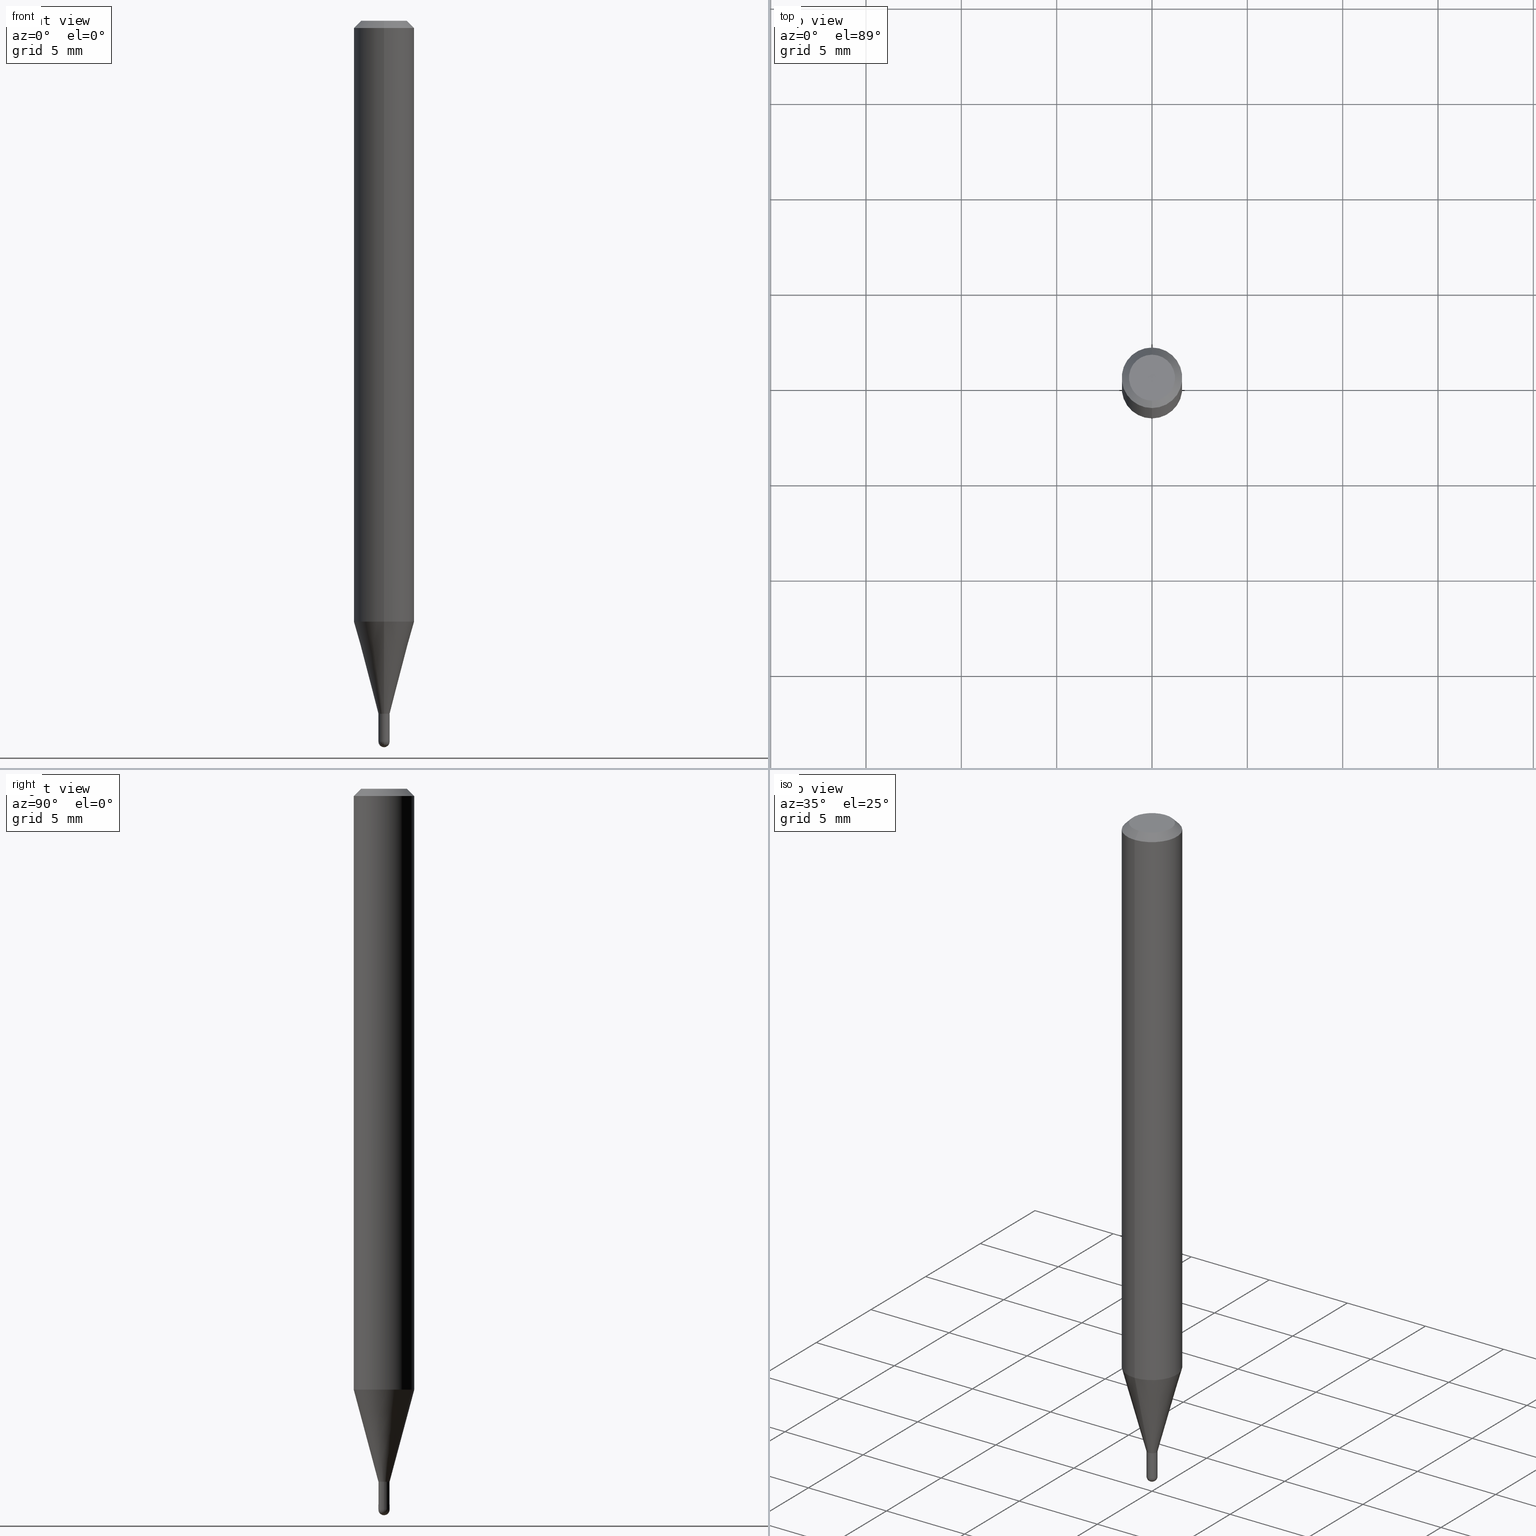
[diagram: canonical four-view strip — front | top / right | iso, engineering-drawing reading convention]
A machine part, canonical four-view strip (front | top / right | iso — engineering-drawing reading convention). The complete STEP part file that produces these views, byte-faithful:
ISO-10303-21;
HEADER;
FILE_DESCRIPTION (( 'STEP AP203' ),
    '1' );
FILE_NAME ('04401.STEP',
    '2024-03-08T19:11:41',
    ( '' ),
    ( '' ),
    'SwSTEP 2.0',
    'SolidWorks 2023',
    '' );
FILE_SCHEMA (( 'CONFIG_CONTROL_DESIGN' ));
ENDSEC;

DATA;
#1 = CIRCLE ( 'NONE', #252, 0.06250000000000000000 ) ;
#2 = CARTESIAN_POINT ( 'NONE',  ( 8.171241461241097765E-17, 0.01149999999999992521, -4.015211543508976530E-17 ) ) ;
#3 = CARTESIAN_POINT ( 'NONE',  ( -0.01149999999999999981, -5.014977469763870023E-15, -1.488499999999999934 ) ) ;
#4 = EDGE_CURVE ( 'NONE', #339, #381, #200, .T. ) ;
#5 = DIRECTION ( 'NONE',  ( 1.000000000000000000, 0.000000000000000000, 0.000000000000000000 ) ) ;
#6 = ORIENTED_EDGE ( 'NONE', *, *, #489, .T. ) ;
#7 = ORIENTED_EDGE ( 'NONE', *, *, #386, .F. ) ;
#8 = APPROVAL ( #44, 'UNSPECIFIED' ) ;
#9 = AXIS2_PLACEMENT_3D ( 'NONE', #478, #249, #335 ) ;
#10 = CIRCLE ( 'NONE', #244, 0.01149999999999965286 ) ;
#11 = APPROVAL_PERSON_ORGANIZATION ( #104, #293, #195 ) ;
#12 = EDGE_LOOP ( 'NONE', ( #317, #361, #265, #206 ) ) ;
#13 = ADVANCED_FACE ( 'NONE', ( #122 ), #325, .F. ) ;
#14 = CALENDAR_DATE ( 2024, 8, 3 ) ;
#15 = ORIENTED_EDGE ( 'NONE', *, *, #299, .T. ) ;
#16 = CC_DESIGN_DATE_AND_TIME_ASSIGNMENT ( #459, #464, ( #302 ) ) ;
#17 = DATE_AND_TIME ( #155, #408 ) ;
#18 = VECTOR ( 'NONE', #511, 39.37007874015748143 ) ;
#19 = CC_DESIGN_SECURITY_CLASSIFICATION ( #302, ( #112 ) ) ;
#20 = EDGE_CURVE ( 'NONE', #235, #274, #251, .T. ) ;
#21 = CALENDAR_DATE ( 2024, 8, 3 ) ;
#22 = ORIENTED_EDGE ( 'NONE', *, *, #386, .T. ) ;
#23 = ADVANCED_FACE ( 'NONE', ( #475 ), #45, .T. ) ;
#24 = ORIENTED_EDGE ( 'NONE', *, *, #168, .F. ) ;
#25 = CARTESIAN_POINT ( 'NONE',  ( 3.840629472727447874E-16, 0.04749999999999999362, -2.313455976474456528E-16 ) ) ;
#26 = DIRECTION ( 'NONE',  ( -2.445463946140640432E-29, 3.491488298703480451E-15, 1.000000000000000000 ) ) ;
#27 = AXIS2_PLACEMENT_3D ( 'NONE', #410, #370, #443 ) ;
#28 = AXIS2_PLACEMENT_3D ( 'NONE', #236, #70, #101 ) ;
#29 = DIRECTION ( 'NONE',  ( -6.982962677686265922E-15, -1.000000000000000000, 0.000000000000000000 ) ) ;
#30 = ORIENTED_EDGE ( 'NONE', *, *, #411, .T. ) ;
#31 = EDGE_CURVE ( 'NONE', #454, #190, #37, .T. ) ;
#32 = FACE_OUTER_BOUND ( 'NONE', #12, .T. ) ;
#33 = ORIENTED_EDGE ( 'NONE', *, *, #411, .F. ) ;
#34 = CC_DESIGN_DATE_AND_TIME_ASSIGNMENT ( #17, #58, ( #305 ) ) ;
#35 = PLANE ( 'NONE',  #324 ) ;
#36 = CARTESIAN_POINT ( 'NONE',  ( 7.815970093364600929E-17, 0.01099999999999500509, -1.430999999999999828 ) ) ;
#37 = CIRCLE ( 'NONE', #27, 0.01149999999999999981 ) ;
#38 = FACE_OUTER_BOUND ( 'NONE', #311, .T. ) ;
#39 = ADVANCED_FACE ( 'NONE', ( #258 ), #375, .T. ) ;
#40 = LINE ( 'NONE', #36, #497 ) ;
#41 = CC_DESIGN_PERSON_AND_ORGANIZATION_ASSIGNMENT ( #87, #46, ( #305 ) ) ;
#42 = APPLICATION_CONTEXT ( 'configuration controlled 3d designs of mechanical parts and assemblies' ) ;
#43 = CARTESIAN_POINT ( 'NONE',  ( 3.499458906927256468E-29, -4.996319755444679261E-15, -1.430999999999999828 ) ) ;
#44 = APPROVAL_STATUS ( 'not_yet_approved' ) ;
#45 = CYLINDRICAL_SURFACE ( 'NONE', #74, 0.01149999999999999981 ) ;
#46 = PERSON_AND_ORGANIZATION_ROLE ( 'creator' ) ;
#47 = CIRCLE ( 'NONE', #91, 0.01149999999999999981 ) ;
#48 = CARTESIAN_POINT ( 'NONE',  ( 3.640080318006575506E-29, -5.197069972868022017E-15, -1.488499999999999934 ) ) ;
#49 =( NAMED_UNIT ( * ) SI_UNIT ( $, .STERADIAN. ) SOLID_ANGLE_UNIT ( ) );
#50 = PERSON_AND_ORGANIZATION_ROLE ( 'design_owner' ) ;
#51 = ORIENTED_EDGE ( 'NONE', *, *, #356, .T. ) ;
#52 = EDGE_LOOP ( 'NONE', ( #22, #15, #434, #63, #224 ) ) ;
#53 = EDGE_CURVE ( 'NONE', #201, #221, #290, .T. ) ;
#54 = AXIS2_PLACEMENT_3D ( 'NONE', #318, #125, #29 ) ;
#55 = APPROVAL_STATUS ( 'not_yet_approved' ) ;
#56 = EDGE_LOOP ( 'NONE', ( #390, #419, #66, #7 ) ) ;
#57 = ADVANCED_FACE ( 'NONE', ( #451 ), #216, .T. ) ;
#58 = DATE_TIME_ROLE ( 'creation_date' ) ;
#59 = DIRECTION ( 'NONE',  ( -6.982962677686265922E-15, -1.000000000000000000, 4.370956789862821150E-15 ) ) ;
#60 = DIRECTION ( 'NONE',  ( -6.982962677686265922E-15, -1.000000000000000000, 3.483106191921935554E-15 ) ) ;
#61 = COORDINATED_UNIVERSAL_TIME_OFFSET ( 5, 0, .BEHIND. ) ;
#62 = ORIENTED_EDGE ( 'NONE', *, *, #141, .F. ) ;
#63 = ORIENTED_EDGE ( 'NONE', *, *, #356, .F. ) ;
#64 = VECTOR ( 'NONE', #184, 39.37007874015748143 ) ;
#65 = PERSON_AND_ORGANIZATION ( #446, #474 ) ;
#66 = ORIENTED_EDGE ( 'NONE', *, *, #153, .F. ) ;
#67 = CARTESIAN_POINT ( 'NONE',  ( -3.773273898774340269E-16, -0.04749999999999999362, 1.003457907293850206E-16 ) ) ;
#68 = DIRECTION ( 'NONE',  ( -6.982962677686265922E-15, -1.000000000000000000, 0.000000000000000000 ) ) ;
#69 = ORIENTED_EDGE ( 'NONE', *, *, #238, .T. ) ;
#70 = DIRECTION ( 'NONE',  ( -2.445463946140640432E-29, 3.491488298703480451E-15, 1.000000000000000000 ) ) ;
#71 = CARTESIAN_POINT ( 'NONE',  ( 0.01149999999999999981, -5.176993955169674331E-15, -1.488499999999999934 ) ) ;
#72 = EDGE_CURVE ( 'NONE', #427, #185, #181, .T. ) ;
#73 = EDGE_LOOP ( 'NONE', ( #187, #77, #403, #468 ) ) ;
#74 = AXIS2_PLACEMENT_3D ( 'NONE', #445, #368, #218 ) ;
#75 = AXIS2_PLACEMENT_3D ( 'NONE', #499, #250, #354 ) ;
#76 = CARTESIAN_POINT ( 'NONE',  ( 0.01149999999999999981, -8.030407079339207309E-17, 5.607603292165326057E-31 ) ) ;
#77 = ORIENTED_EDGE ( 'NONE', *, *, #106, .T. ) ;
#78 = CARTESIAN_POINT ( 'NONE',  ( -8.030407079335871906E-17, -0.01150000000000523173, -1.430500000000000327 ) ) ;
#79 = DIRECTION ( 'NONE',  ( -2.445463946140639871E-29, 3.491488298703480845E-15, 1.000000000000000000 ) ) ;
#80 = CARTESIAN_POINT ( 'NONE',  ( 4.364351673553919652E-16, 0.06249999999999995143, -0.01500000000000028394 ) ) ;
#81 = DIRECTION ( 'NONE',  ( -2.445468806185136597E-29, 3.491481338843145583E-15, 1.000000000000000000 ) ) ;
#82 = CIRCLE ( 'NONE', #467, 0.04749999999999999362 ) ;
#83 = CONICAL_SURFACE ( 'NONE', #383, 0.01100000000000000110, 0.7853981633980202659 ) ;
#84 = CARTESIAN_POINT ( 'NONE',  ( 8.030407079342705414E-17, 0.01149999999999500380, -1.431000000000000050 ) ) ;
#85 = MANIFOLD_SOLID_BREP ( 'Body-Move/Copy2[1]', #146 ) ;
#86 = DIRECTION ( 'NONE',  ( 5.024295867790934632E-15, 0.7071067811869542474, 0.7071067811861405650 ) ) ;
#87 = PERSON_AND_ORGANIZATION ( #446, #474 ) ;
#88 = DIRECTION ( 'NONE',  ( -6.982962677686265922E-15, -1.000000000000000000, 4.370956789862821150E-15 ) ) ;
#89 = EDGE_CURVE ( 'NONE', #221, #274, #444, .T. ) ;
#90 = CARTESIAN_POINT ( 'NONE',  ( 3.499458906927256468E-29, -4.996319755444679261E-15, -1.430999999999999828 ) ) ;
#91 = AXIS2_PLACEMENT_3D ( 'NONE', #289, #447, #124 ) ;
#92 = PRODUCT_DEFINITION_SHAPE ( 'NONE', 'NONE',  #305 ) ;
#93 = VERTEX_POINT ( 'NONE', #405 ) ;
#94 = SPHERICAL_SURFACE ( 'NONE', #98, 0.01150000000000006919 ) ;
#95 = ORIENTED_EDGE ( 'NONE', *, *, #172, .F. ) ;
#96 = EDGE_CURVE ( 'NONE', #105, #274, #40, .T. ) ;
#97 = DIRECTION ( 'NONE',  ( -6.982962677686265922E-15, -1.000000000000000000, 0.000000000000000000 ) ) ;
#98 = AXIS2_PLACEMENT_3D ( 'NONE', #415, #376, #97 ) ;
#99 = CALENDAR_DATE ( 2024, 8, 3 ) ;
#100 =( GEOMETRIC_REPRESENTATION_CONTEXT ( 3 ) GLOBAL_UNCERTAINTY_ASSIGNED_CONTEXT ( ( #423 ) ) GLOBAL_UNIT_ASSIGNED_CONTEXT ( ( #175, #257, #49 ) ) REPRESENTATION_CONTEXT ( 'NONE', 'WORKASPACE' ) );
#101 = DIRECTION ( 'NONE',  ( -6.982962677686266711E-15, -1.000000000000000000, 3.491488298703480451E-15 ) ) ;
#102 = EDGE_LOOP ( 'NONE', ( #438, #198, #247, #278 ) ) ;
#103 = DIRECTION ( 'NONE',  ( -6.982962677686266711E-15, -1.000000000000000000, 3.491488298703480451E-15 ) ) ;
#104 = PERSON_AND_ORGANIZATION ( #446, #474 ) ;
#105 = VERTEX_POINT ( 'NONE', #413 ) ;
#106 = EDGE_CURVE ( 'NONE', #280, #427, #212, .T. ) ;
#107 = DATE_AND_TIME ( #14, #422 ) ;
#108 = VECTOR ( 'NONE', #171, 39.37007874015748854 ) ;
#109 = ORIENTED_EDGE ( 'NONE', *, *, #441, .T. ) ;
#110 = CIRCLE ( 'NONE', #223, 0.01149999999999999981 ) ;
#111 = DIRECTION ( 'NONE',  ( -2.445463946140640432E-29, 3.491488298703480451E-15, 1.000000000000000000 ) ) ;
#112 = PRODUCT_DEFINITION_FORMATION_WITH_SPECIFIED_SOURCE ( 'ANY', '', #191, .NOT_KNOWN. ) ;
#113 = ORIENTED_EDGE ( 'NONE', *, *, #72, .F. ) ;
#114 = CARTESIAN_POINT ( 'NONE',  ( -4.287811248607203282E-16, -0.06250000000000005551, -0.01499999999999984852 ) ) ;
#115 = ORIENTED_EDGE ( 'NONE', *, *, #183, .T. ) ;
#116 = DIRECTION ( 'NONE',  ( -1.807323732225378260E-15, -0.2588190451025250693, 0.9659258262890670910 ) ) ;
#117 = CC_DESIGN_PERSON_AND_ORGANIZATION_ASSIGNMENT ( #313, #316, ( #112 ) ) ;
#118 = EDGE_LOOP ( 'NONE', ( #227, #240 ) ) ;
#119 = CONICAL_SURFACE ( 'NONE', #54, 0.01100000000000000110, 0.7853981633980202659 ) ;
#120 = CIRCLE ( 'NONE', #388, 0.01150000000000006919 ) ;
#121 = FACE_OUTER_BOUND ( 'NONE', #73, .T. ) ;
#122 = FACE_OUTER_BOUND ( 'NONE', #378, .T. ) ;
#123 = ADVANCED_FACE ( 'NONE', ( #170 ), #209, .F. ) ;
#124 = DIRECTION ( 'NONE',  ( 1.000000000000000000, -6.982962677686291165E-15, 0.000000000000000000 ) ) ;
#125 = DIRECTION ( 'NONE',  ( -2.445463946140640432E-29, 3.491488298703480451E-15, 1.000000000000000000 ) ) ;
#126 = DIRECTION ( 'NONE',  ( -2.445463946140640432E-29, 3.491488298703480451E-15, 1.000000000000000000 ) ) ;
#127 = CARTESIAN_POINT ( 'NONE',  ( 3.499465861650930802E-29, -4.996309795884541218E-15, -1.431000000000000050 ) ) ;
#128 = CLOSED_SHELL ( 'NONE', ( #194, #510, #214, #363, #286, #176, #344, #132, #255, #13, #330, #366 ) ) ;
#129 = CC_DESIGN_APPROVAL ( #293, ( #302 ) ) ;
#130 = DIRECTION ( 'NONE',  ( -6.982962677686265922E-15, -1.000000000000000000, 0.000000000000000000 ) ) ;
#131 = CALENDAR_DATE ( 2024, 8, 3 ) ;
#132 = ADVANCED_FACE ( 'NONE', ( #365 ), #233, .T. ) ;
#133 = DIRECTION ( 'NONE',  ( 2.438088387897960049E-29, -3.491481338843145188E-15, -1.000000000000000000 ) ) ;
#134 =( LENGTH_UNIT ( ) NAMED_UNIT ( * ) SI_UNIT ( $, .METRE. ) );
#135 = CC_DESIGN_PERSON_AND_ORGANIZATION_ASSIGNMENT ( #485, #50, ( #191 ) ) ;
#136 = DIRECTION ( 'NONE',  ( -2.445463946140640432E-29, 3.491488298703480451E-15, 1.000000000000000000 ) ) ;
#137 = CIRCLE ( 'NONE', #301, 0.01100000000000000110 ) ;
#138 = LOCAL_TIME ( 14, 11, 41.00000000000000000, #420 ) ;
#139 = DIRECTION ( 'NONE',  ( -2.445463946140640432E-29, 3.491488298703480451E-15, 1.000000000000000000 ) ) ;
#140 = DIRECTION ( 'NONE',  ( -6.982962677686265922E-15, -1.000000000000000000, 0.000000000000000000 ) ) ;
#141 = EDGE_CURVE ( 'NONE', #280, #93, #498, .T. ) ;
#142 = DIRECTION ( 'NONE',  ( 1.000000000000000000, -7.105427357601001070E-15, 4.926315508542082329E-29 ) ) ;
#143 = EDGE_LOOP ( 'NONE', ( #241, #24, #30, #243 ) ) ;
#144 = CC_DESIGN_PERSON_AND_ORGANIZATION_ASSIGNMENT ( #488, #145, ( #112 ) ) ;
#145 = PERSON_AND_ORGANIZATION_ROLE ( 'creator' ) ;
#146 = CLOSED_SHELL ( 'NONE', ( #39, #57, #123, #416, #23 ) ) ;
#147 = VECTOR ( 'NONE', #207, 39.37007874015748143 ) ;
#148 = APPROVAL_PERSON_ORGANIZATION ( #457, #8, #215 ) ;
#149 = ADVANCED_BREP_SHAPE_REPRESENTATION ( '04401', ( #85, #268, #342 ), #100 ) ;
#150 = CARTESIAN_POINT ( 'NONE',  ( 0.000000000000000000, 0.000000000000000000, 0.000000000000000000 ) ) ;
#151 = ORIENTED_EDGE ( 'NONE', *, *, #328, .T. ) ;
#152 = CARTESIAN_POINT ( 'NONE',  ( 8.171241461244403586E-17, 0.01149999999999465686, -1.431000000000000050 ) ) ;
#153 = EDGE_CURVE ( 'NONE', #504, #355, #458, .T. ) ;
#154 = ORIENTED_EDGE ( 'NONE', *, *, #359, .F. ) ;
#155 = CALENDAR_DATE ( 2024, 8, 3 ) ;
#156 = ORIENTED_EDGE ( 'NONE', *, *, #4, .F. ) ;
#157 = CONICAL_SURFACE ( 'NONE', #260, 0.01149999999999965286, 0.2617993877991574014 ) ;
#158 = CC_DESIGN_APPROVAL ( #8, ( #305 ) ) ;
#159 = EDGE_CURVE ( 'NONE', #190, #454, #110, .T. ) ;
#160 = LINE ( 'NONE', #326, #147 ) ;
#161 = ORIENTED_EDGE ( 'NONE', *, *, #299, .F. ) ;
#162 = FACE_OUTER_BOUND ( 'NONE', #56, .T. ) ;
#163 = EDGE_CURVE ( 'NONE', #105, #201, #137, .T. ) ;
#164 = CARTESIAN_POINT ( 'NONE',  ( 2.629008122312686102E-16, 0.01149999999999465686, -1.431000000000000050 ) ) ;
#165 = EDGE_LOOP ( 'NONE', ( #487, #115 ) ) ;
#166 = DIRECTION ( 'NONE',  ( -6.982962677686265922E-15, -1.000000000000000000, 0.000000000000000000 ) ) ;
#167 = CARTESIAN_POINT ( 'NONE',  ( 3.499458906927257029E-29, -4.996319755444680050E-15, -1.431000000000000050 ) ) ;
#168 = EDGE_CURVE ( 'NONE', #307, #235, #10, .T. ) ;
#169 = CARTESIAN_POINT ( 'NONE',  ( -7.681258945451393699E-17, -0.01100000000000499710, -1.430999999999999828 ) ) ;
#170 = FACE_OUTER_BOUND ( 'NONE', #118, .T. ) ;
#171 = DIRECTION ( 'NONE',  ( -4.937700262167370586E-15, -0.7071067811869493624, 0.7071067811861454500 ) ) ;
#172 = EDGE_CURVE ( 'NONE', #93, #280, #372, .T. ) ;
#173 = AXIS2_PLACEMENT_3D ( 'NONE', #329, #296, #481 ) ;
#174 = CARTESIAN_POINT ( 'NONE',  ( 4.440892098500625669E-16, 0.06250000000000000000, -2.182180186689675282E-16 ) ) ;
#175 =( CONVERSION_BASED_UNIT ( 'INCH', #369 ) LENGTH_UNIT ( ) NAMED_UNIT ( #380 ) );
#176 = ADVANCED_FACE ( 'NONE', ( #453 ), #429, .T. ) ;
#177 = CARTESIAN_POINT ( 'NONE',  ( 0.01149999999999999981, -5.076613866677933538E-15, -1.431000000000000050 ) ) ;
#178 = LINE ( 'NONE', #304, #64 ) ;
#179 = ORIENTED_EDGE ( 'NONE', *, *, #96, .T. ) ;
#180 = ORIENTED_EDGE ( 'NONE', *, *, #159, .F. ) ;
#181 = CIRCLE ( 'NONE', #9, 0.06250000000000000000 ) ;
#182 = AXIS2_PLACEMENT_3D ( 'NONE', #484, #139, #303 ) ;
#183 = EDGE_CURVE ( 'NONE', #381, #339, #82, .T. ) ;
#184 = DIRECTION ( 'NONE',  ( -2.445463946140640432E-29, 3.491488298703480845E-15, 1.000000000000000000 ) ) ;
#185 = VERTEX_POINT ( 'NONE', #310 ) ;
#186 = SHAPE_DEFINITION_REPRESENTATION ( #92, #149 ) ;
#187 = ORIENTED_EDGE ( 'NONE', *, *, #172, .T. ) ;
#188 = CIRCLE ( 'NONE', #399, 0.01149999999999999981 ) ;
#189 = APPROVAL_ROLE ( '' ) ;
#190 = VERTEX_POINT ( 'NONE', #348 ) ;
#191 = PRODUCT ( '04401', '04401', '', ( #259 ) ) ;
#192 = DIRECTION ( 'NONE',  ( -6.982962677686265922E-15, -1.000000000000000000, 3.491488298703480451E-15 ) ) ;
#193 = LINE ( 'NONE', #152, #211 ) ;
#194 = ADVANCED_FACE ( 'NONE', ( #350 ), #491, .F. ) ;
#195 = APPROVAL_ROLE ( '' ) ;
#196 = VERTEX_POINT ( 'NONE', #272 ) ;
#197 = EDGE_CURVE ( 'NONE', #185, #427, #1, .T. ) ;
#198 = ORIENTED_EDGE ( 'NONE', *, *, #493, .T. ) ;
#199 = FACE_OUTER_BOUND ( 'NONE', #502, .T. ) ;
#200 = CIRCLE ( 'NONE', #428, 0.04749999999999999362 ) ;
#201 = VERTEX_POINT ( 'NONE', #232 ) ;
#202 = LINE ( 'NONE', #435, #18 ) ;
#203 = CARTESIAN_POINT ( 'NONE',  ( -8.030407079335589642E-17, -0.01150000000000523347, -1.488499999999999934 ) ) ;
#204 = ORIENTED_EDGE ( 'NONE', *, *, #323, .F. ) ;
#205 = CARTESIAN_POINT ( 'NONE',  ( 3.499458906927257029E-29, -4.996319755444680050E-15, -1.431000000000000050 ) ) ;
#206 = ORIENTED_EDGE ( 'NONE', *, *, #466, .F. ) ;
#207 = DIRECTION ( 'NONE',  ( -2.445468806185136877E-29, 3.491481338843145188E-15, 1.000000000000000000 ) ) ;
#208 = EDGE_CURVE ( 'NONE', #235, #280, #193, .T. ) ;
#209 = PLANE ( 'NONE',  #371 ) ;
#210 = VECTOR ( 'NONE', #213, 39.37007874015748143 ) ;
#211 = VECTOR ( 'NONE', #312, 39.37007874015748143 ) ;
#212 = LINE ( 'NONE', #174, #332 ) ;
#213 = DIRECTION ( 'NONE',  ( -2.445463946140640432E-29, 3.491488298703480845E-15, 1.000000000000000000 ) ) ;
#214 = ADVANCED_FACE ( 'NONE', ( #463 ), #382, .T. ) ;
#215 = APPROVAL_ROLE ( '' ) ;
#216 = SPHERICAL_SURFACE ( 'NONE', #267, 0.01150000000000006919 ) ;
#217 = AXIS2_PLACEMENT_3D ( 'NONE', #150, #460, #103 ) ;
#218 = DIRECTION ( 'NONE',  ( 1.000000000000000000, -6.982962677686267499E-15, 4.876176775795935793E-29 ) ) ;
#219 = CARTESIAN_POINT ( 'NONE',  ( 0.000000000000000000, 0.000000000000000000, 0.000000000000000000 ) ) ;
#220 = APPROVAL ( #55, 'UNSPECIFIED' ) ;
#221 = VERTEX_POINT ( 'NONE', #78 ) ;
#222 = AXIS2_PLACEMENT_3D ( 'NONE', #367, #331, #130 ) ;
#223 = AXIS2_PLACEMENT_3D ( 'NONE', #127, #254, #409 ) ;
#224 = ORIENTED_EDGE ( 'NONE', *, *, #392, .T. ) ;
#225 = DESIGN_CONTEXT ( 'detailed design', #42, 'design' ) ;
#226 = APPROVAL_DATE_TIME ( #345, #293 ) ;
#227 = ORIENTED_EDGE ( 'NONE', *, *, #31, .T. ) ;
#228 = DIRECTION ( 'NONE',  ( 1.000000000000000000, -6.982962677686291165E-15, 0.000000000000000000 ) ) ;
#229 = DIRECTION ( 'NONE',  ( -6.982962677686266711E-15, -1.000000000000000000, 3.491488298703480845E-15 ) ) ;
#230 = ORIENTED_EDGE ( 'NONE', *, *, #253, .T. ) ;
#231 = EDGE_CURVE ( 'NONE', #196, #355, #291, .T. ) ;
#232 = CARTESIAN_POINT ( 'NONE',  ( -7.681258945451393699E-17, -0.01100000000000499710, -1.430999999999999828 ) ) ;
#233 = CONICAL_SURFACE ( 'NONE', #173, 0.06250000000000000000, 0.7853981633974483900 ) ;
#234 = CC_DESIGN_APPROVAL ( #220, ( #112 ) ) ;
#235 = VERTEX_POINT ( 'NONE', #164 ) ;
#236 = CARTESIAN_POINT ( 'NONE',  ( 0.000000000000000000, 0.000000000000000000, 0.000000000000000000 ) ) ;
#237 = CARTESIAN_POINT ( 'NONE',  ( 3.668195919210977323E-31, -5.237232448055243799E-17, -0.01500000000000006710 ) ) ;
#238 = EDGE_CURVE ( 'NONE', #355, #353, #188, .T. ) ;
#239 = COORDINATED_UNIVERSAL_TIME_OFFSET ( 5, 0, .BEHIND. ) ;
#240 = ORIENTED_EDGE ( 'NONE', *, *, #159, .T. ) ;
#241 = ORIENTED_EDGE ( 'NONE', *, *, #20, .F. ) ;
#242 = DIRECTION ( 'NONE',  ( -2.445463946140640432E-29, 3.491488298703480451E-15, 1.000000000000000000 ) ) ;
#243 = ORIENTED_EDGE ( 'NONE', *, *, #89, .T. ) ;
#244 = AXIS2_PLACEMENT_3D ( 'NONE', #492, #298, #68 ) ;
#245 = LOCAL_TIME ( 14, 11, 41.00000000000000000, #239 ) ;
#246 = DIRECTION ( 'NONE',  ( -2.445468806185136877E-29, 3.491481338843145188E-15, 1.000000000000000000 ) ) ;
#247 = ORIENTED_EDGE ( 'NONE', *, *, #392, .F. ) ;
#248 = CYLINDRICAL_SURFACE ( 'NONE', #282, 0.06250000000000000000 ) ;
#249 = DIRECTION ( 'NONE',  ( -2.445463946140640432E-29, 3.491488298703480451E-15, 1.000000000000000000 ) ) ;
#250 = DIRECTION ( 'NONE',  ( -1.000000000000000000, 6.982962677686265922E-15, -4.883557194083112340E-29 ) ) ;
#251 = LINE ( 'NONE', #2, #210 ) ;
#252 = AXIS2_PLACEMENT_3D ( 'NONE', #424, #276, #60 ) ;
#253 = EDGE_CURVE ( 'NONE', #339, #427, #442, .T. ) ;
#254 = DIRECTION ( 'NONE',  ( -2.445468806185136597E-29, 3.491481338843145583E-15, 1.000000000000000000 ) ) ;
#255 = ADVANCED_FACE ( 'NONE', ( #404 ), #35, .F. ) ;
#256 = CARTESIAN_POINT ( 'NONE',  ( 3.034002526478456227E-29, -4.331768757480223659E-15, -1.240665408813992121 ) ) ;
#257 =( NAMED_UNIT ( * ) PLANE_ANGLE_UNIT ( ) SI_UNIT ( $, .RADIAN. ) );
#258 = FACE_OUTER_BOUND ( 'NONE', #52, .T. ) ;
#259 = MECHANICAL_CONTEXT ( 'NONE', #346, 'mechanical' ) ;
#260 = AXIS2_PLACEMENT_3D ( 'NONE', #167, #322, #471 ) ;
#261 = APPROVAL_PERSON_ORGANIZATION ( #65, #220, #189 ) ;
#262 = EDGE_LOOP ( 'NONE', ( #418, #277, #151, #62 ) ) ;
#263 = CARTESIAN_POINT ( 'NONE',  ( 1.601776523847512105E-45, -2.286921464934118944E-31, -6.549990345903029144E-17 ) ) ;
#264 = EDGE_LOOP ( 'NONE', ( #204, #156, #230, #394 ) ) ;
#265 = ORIENTED_EDGE ( 'NONE', *, *, #53, .T. ) ;
#266 = CARTESIAN_POINT ( 'NONE',  ( 8.171241461244814040E-17, 0.01149999999999483553, -1.488499999999999934 ) ) ;
#267 = AXIS2_PLACEMENT_3D ( 'NONE', #448, #294, #477 ) ;
#268 = MANIFOLD_SOLID_BREP ( 'Body-Move/Copy2[2]', #128 ) ;
#269 = AXIS2_PLACEMENT_3D ( 'NONE', #205, #503, #166 ) ;
#270 = DIRECTION ( 'NONE',  ( -2.445468806185136597E-29, 3.491481338843145583E-15, 1.000000000000000000 ) ) ;
#271 = CARTESIAN_POINT ( 'NONE',  ( 0.000000000000000000, 0.000000000000000000, 0.000000000000000000 ) ) ;
#272 = CARTESIAN_POINT ( 'NONE',  ( 3.666728047428870464E-29, -5.239334523993247680E-15, -1.500000000000000222 ) ) ;
#273 = PERSON_AND_ORGANIZATION_ROLE ( 'classification_officer' ) ;
#274 = VERTEX_POINT ( 'NONE', #281 ) ;
#275 = ORIENTED_EDGE ( 'NONE', *, *, #20, .T. ) ;
#276 = DIRECTION ( 'NONE',  ( -2.445463946140640432E-29, 3.491488298703480451E-15, 1.000000000000000000 ) ) ;
#277 = ORIENTED_EDGE ( 'NONE', *, *, #359, .T. ) ;
#278 = ORIENTED_EDGE ( 'NONE', *, *, #238, .F. ) ;
#279 = DIRECTION ( 'NONE',  ( -6.982962677686265922E-15, -1.000000000000000000, 3.491488298703480451E-15 ) ) ;
#280 = VERTEX_POINT ( 'NONE', #320 ) ;
#281 = CARTESIAN_POINT ( 'NONE',  ( 8.171241461244763503E-17, 0.01149999999999516687, -1.430500000000000327 ) ) ;
#282 = AXIS2_PLACEMENT_3D ( 'NONE', #469, #242, #279 ) ;
#283 = ORIENTED_EDGE ( 'NONE', *, *, #141, .T. ) ;
#284 = DIRECTION ( 'NONE',  ( -2.445468806185136597E-29, 3.491481338843145583E-15, 1.000000000000000000 ) ) ;
#285 = CARTESIAN_POINT ( 'NONE',  ( 3.499458906927257029E-29, -4.996319755444680050E-15, -1.431000000000000050 ) ) ;
#286 = ADVANCED_FACE ( 'NONE', ( #38 ), #157, .T. ) ;
#287 = DIRECTION ( 'NONE',  ( 6.982962677686265922E-15, 1.000000000000000000, -3.483106191921935554E-15 ) ) ;
#288 = DIRECTION ( 'NONE',  ( -1.000000000000000000, 6.982962677686265922E-15, -4.876176775795935793E-29 ) ) ;
#289 = CARTESIAN_POINT ( 'NONE',  ( 3.640080318006575506E-29, -5.197069972868022017E-15, -1.488499999999999934 ) ) ;
#290 = LINE ( 'NONE', #169, #108 ) ;
#291 = CIRCLE ( 'NONE', #75, 0.01150000000000006919 ) ;
#292 = CIRCLE ( 'NONE', #349, 0.01150000000000019930 ) ;
#293 = APPROVAL ( #352, 'UNSPECIFIED' ) ;
#294 = DIRECTION ( 'NONE',  ( 1.000000000000000000, -6.982962677686265922E-15, 4.883557194083112901E-29 ) ) ;
#295 = DATE_AND_TIME ( #131, #400 ) ;
#296 = DIRECTION ( 'NONE',  ( 2.445463946140640432E-29, -3.491488298703480451E-15, -1.000000000000000000 ) ) ;
#297 = CARTESIAN_POINT ( 'NONE',  ( 4.440892098500930859E-16, 0.06249999999999995143, -0.01500000000000028394 ) ) ;
#298 = DIRECTION ( 'NONE',  ( -2.445463946140640432E-29, 3.491488298703480451E-15, 1.000000000000000000 ) ) ;
#299 = EDGE_CURVE ( 'NONE', #504, #190, #160, .T. ) ;
#300 = DIRECTION ( 'NONE',  ( -2.445463946140640432E-29, 3.491488298703480451E-15, 1.000000000000000000 ) ) ;
#301 = AXIS2_PLACEMENT_3D ( 'NONE', #43, #480, #431 ) ;
#302 = SECURITY_CLASSIFICATION ( '', '', #384 ) ;
#303 = DIRECTION ( 'NONE',  ( -6.982962677686265922E-15, -1.000000000000000000, 0.000000000000000000 ) ) ;
#304 = CARTESIAN_POINT ( 'NONE',  ( -4.364351673553916201E-16, -0.06250000000000000000, 2.182180186689675282E-16 ) ) ;
#305 = PRODUCT_DEFINITION ( 'UNKNOWN', '', #112, #225 ) ;
#306 = DIRECTION ( 'NONE',  ( -6.982962677686265922E-15, -1.000000000000000000, 0.000000000000000000 ) ) ;
#307 = VERTEX_POINT ( 'NONE', #362 ) ;
#308 = AXIS2_PLACEMENT_3D ( 'NONE', #285, #79, #407 ) ;
#309 = AXIS2_PLACEMENT_3D ( 'NONE', #237, #360, #287 ) ;
#310 = CARTESIAN_POINT ( 'NONE',  ( -4.364351673553912750E-16, -0.06250000000000005551, -0.01499999999999984852 ) ) ;
#311 = EDGE_LOOP ( 'NONE', ( #470, #425, #95, #314 ) ) ;
#312 = DIRECTION ( 'NONE',  ( 1.839019923739649225E-15, 0.2588190451025318417, 0.9659258262890653146 ) ) ;
#313 = PERSON_AND_ORGANIZATION ( #446, #474 ) ;
#314 = ORIENTED_EDGE ( 'NONE', *, *, #328, .F. ) ;
#315 = CC_DESIGN_PERSON_AND_ORGANIZATION_ASSIGNMENT ( #495, #273, ( #302 ) ) ;
#316 = PERSON_AND_ORGANIZATION_ROLE ( 'design_supplier' ) ;
#317 = ORIENTED_EDGE ( 'NONE', *, *, #96, .F. ) ;
#318 = CARTESIAN_POINT ( 'NONE',  ( 3.499458906927256468E-29, -4.996319755444679261E-15, -1.430999999999999828 ) ) ;
#319 = DIRECTION ( 'NONE',  ( -6.982962677686266711E-15, -1.000000000000000000, 3.491488298703480845E-15 ) ) ;
#320 = CARTESIAN_POINT ( 'NONE',  ( 4.440892098500927901E-16, 0.06249999999999567013, -1.240665408813992343 ) ) ;
#321 = ORIENTED_EDGE ( 'NONE', *, *, #441, .F. ) ;
#322 = DIRECTION ( 'NONE',  ( -2.445463946140640432E-29, 3.491488298703480451E-15, 1.000000000000000000 ) ) ;
#323 = EDGE_CURVE ( 'NONE', #381, #185, #476, .T. ) ;
#324 = AXIS2_PLACEMENT_3D ( 'NONE', #501, #396, #406 ) ;
#325 = PLANE ( 'NONE',  #308 ) ;
#326 = CARTESIAN_POINT ( 'NONE',  ( -0.01149999999999999981, 8.171241461241151999E-17, -5.656775353793142476E-31 ) ) ;
#327 = DIRECTION ( 'NONE',  ( 1.000000000000000000, -6.982962677686291165E-15, 0.000000000000000000 ) ) ;
#328 = EDGE_CURVE ( 'NONE', #307, #93, #398, .T. ) ;
#329 = CARTESIAN_POINT ( 'NONE',  ( 3.668195919210977323E-31, -5.237232448055243799E-17, -0.01500000000000006710 ) ) ;
#330 = ADVANCED_FACE ( 'NONE', ( #32 ), #119, .T. ) ;
#331 = DIRECTION ( 'NONE',  ( -2.445463946140640432E-29, 3.491488298703480451E-15, 1.000000000000000000 ) ) ;
#332 = VECTOR ( 'NONE', #509, 39.37007874015748143 ) ;
#333 = COORDINATED_UNIVERSAL_TIME_OFFSET ( 5, 0, .BEHIND. ) ;
#334 = AXIS2_PLACEMENT_3D ( 'NONE', #395, #270, #228 ) ;
#335 = DIRECTION ( 'NONE',  ( -6.982962677686265922E-15, -1.000000000000000000, 3.483106191921935554E-15 ) ) ;
#336 = CARTESIAN_POINT ( 'NONE',  ( 3.499458906927256468E-29, -4.996319755444679261E-15, -1.430999999999999828 ) ) ;
#337 = DIRECTION ( 'NONE',  ( -2.445463946140640432E-29, 3.491488298703480451E-15, 1.000000000000000000 ) ) ;
#338 = APPLICATION_PROTOCOL_DEFINITION ( 'international standard', 'config_control_design', 1994, #346 ) ;
#339 = VERTEX_POINT ( 'NONE', #25 ) ;
#340 = AXIS2_PLACEMENT_3D ( 'NONE', #440, #81, #512 ) ;
#341 = AXIS2_PLACEMENT_3D ( 'NONE', #256, #126, #88 ) ;
#342 = AXIS2_PLACEMENT_3D ( 'NONE', #219, #377, #5 ) ;
#343 = ORIENTED_EDGE ( 'NONE', *, *, #53, .F. ) ;
#344 = ADVANCED_FACE ( 'NONE', ( #199 ), #248, .T. ) ;
#345 = DATE_AND_TIME ( #21, #245 ) ;
#346 = APPLICATION_CONTEXT ( 'configuration controlled 3d designs of mechanical parts and assemblies' ) ;
#347 = VECTOR ( 'NONE', #473, 39.37007874015748143 ) ;
#348 = CARTESIAN_POINT ( 'NONE',  ( -0.01149999999999999981, -5.014977469763870023E-15, -1.431000000000000050 ) ) ;
#349 = AXIS2_PLACEMENT_3D ( 'NONE', #373, #452, #306 ) ;
#350 = FACE_OUTER_BOUND ( 'NONE', #351, .T. ) ;
#351 = EDGE_LOOP ( 'NONE', ( #154, #275, #461, #33 ) ) ;
#352 = APPROVAL_STATUS ( 'not_yet_approved' ) ;
#353 = VERTEX_POINT ( 'NONE', #71 ) ;
#354 = DIRECTION ( 'NONE',  ( -6.982962677686265922E-15, -1.000000000000000000, 0.000000000000000000 ) ) ;
#355 = VERTEX_POINT ( 'NONE', #203 ) ;
#356 = EDGE_CURVE ( 'NONE', #353, #454, #436, .T. ) ;
#357 = DIRECTION ( 'NONE',  ( 1.000000000000000000, -6.982962677686291165E-15, 0.000000000000000000 ) ) ;
#358 = ORIENTED_EDGE ( 'NONE', *, *, #153, .T. ) ;
#359 = EDGE_CURVE ( 'NONE', #235, #307, #421, .T. ) ;
#360 = DIRECTION ( 'NONE',  ( 2.445463946140640432E-29, -3.491488298703480451E-15, -1.000000000000000000 ) ) ;
#361 = ORIENTED_EDGE ( 'NONE', *, *, #163, .T. ) ;
#362 = CARTESIAN_POINT ( 'NONE',  ( -8.030407079335462685E-17, -0.01150000000000464886, -1.431000000000000050 ) ) ;
#363 = ADVANCED_FACE ( 'NONE', ( #121 ), #439, .T. ) ;
#364 = AXIS2_PLACEMENT_3D ( 'NONE', #391, #337, #59 ) ;
#365 = FACE_OUTER_BOUND ( 'NONE', #264, .T. ) ;
#366 = ADVANCED_FACE ( 'NONE', ( #462 ), #426, .F. ) ;
#367 = CARTESIAN_POINT ( 'NONE',  ( 3.498236174954186162E-29, -4.994574011295329614E-15, -1.430500000000000327 ) ) ;
#368 = DIRECTION ( 'NONE',  ( -2.445468806185136597E-29, 3.491481338843145583E-15, 1.000000000000000000 ) ) ;
#369 = LENGTH_MEASURE_WITH_UNIT ( LENGTH_MEASURE( 0.02539999999999999897 ), #134 );
#370 = DIRECTION ( 'NONE',  ( -2.445468806185136597E-29, 3.491481338843145583E-15, 1.000000000000000000 ) ) ;
#371 = AXIS2_PLACEMENT_3D ( 'NONE', #84, #133, #288 ) ;
#372 = CIRCLE ( 'NONE', #364, 0.06250000000000000000 ) ;
#373 = CARTESIAN_POINT ( 'NONE',  ( 3.498236174954186162E-29, -4.994574011295329614E-15, -1.430500000000000327 ) ) ;
#374 = VECTOR ( 'NONE', #505, 39.37007874015748143 ) ;
#375 = CYLINDRICAL_SURFACE ( 'NONE', #340, 0.01149999999999999981 ) ;
#376 = DIRECTION ( 'NONE',  ( 1.000000000000000000, -6.982962677686265922E-15, 4.883557194083112901E-29 ) ) ;
#377 = DIRECTION ( 'NONE',  ( 0.000000000000000000, 0.000000000000000000, 1.000000000000000000 ) ) ;
#378 = EDGE_LOOP ( 'NONE', ( #321, #465 ) ) ;
#379 = APPLICATION_PROTOCOL_DEFINITION ( 'international standard', 'config_control_design', 1994, #42 ) ;
#380 = DIMENSIONAL_EXPONENTS ( 1.000000000000000000, 0.000000000000000000, 0.000000000000000000, 0.000000000000000000, 0.000000000000000000, 0.000000000000000000, 0.000000000000000000 ) ;
#381 = VERTEX_POINT ( 'NONE', #67 ) ;
#382 = CONICAL_SURFACE ( 'NONE', #309, 0.06250000000000000000, 0.7853981633974483900 ) ;
#383 = AXIS2_PLACEMENT_3D ( 'NONE', #90, #136, #482 ) ;
#384 = SECURITY_CLASSIFICATION_LEVEL ( 'unclassified' ) ;
#385 = ORIENTED_EDGE ( 'NONE', *, *, #253, .F. ) ;
#386 = EDGE_CURVE ( 'NONE', #500, #504, #479, .T. ) ;
#387 = CIRCLE ( 'NONE', #507, 0.01100000000000000110 ) ;
#388 = AXIS2_PLACEMENT_3D ( 'NONE', #455, #142, #412 ) ;
#389 = APPROVAL_DATE_TIME ( #107, #220 ) ;
#390 = ORIENTED_EDGE ( 'NONE', *, *, #493, .F. ) ;
#391 = CARTESIAN_POINT ( 'NONE',  ( 3.034002526478456227E-29, -4.331768757480223659E-15, -1.240665408813992121 ) ) ;
#392 = EDGE_CURVE ( 'NONE', #353, #500, #47, .T. ) ;
#393 = COORDINATED_UNIVERSAL_TIME_OFFSET ( 5, 0, .BEHIND. ) ;
#394 = ORIENTED_EDGE ( 'NONE', *, *, #72, .T. ) ;
#395 = CARTESIAN_POINT ( 'NONE',  ( 3.640080318006575506E-29, -5.197069972868022017E-15, -1.488499999999999934 ) ) ;
#396 = DIRECTION ( 'NONE',  ( 2.445463946140639871E-29, -3.491488298703480845E-15, -1.000000000000000000 ) ) ;
#397 = CARTESIAN_POINT ( 'NONE',  ( 1.601776523847512105E-45, -2.286921464934118944E-31, -6.549990345903029144E-17 ) ) ;
#398 = LINE ( 'NONE', #433, #437 ) ;
#399 = AXIS2_PLACEMENT_3D ( 'NONE', #402, #284, #357 ) ;
#400 = LOCAL_TIME ( 14, 11, 41.00000000000000000, #333 ) ;
#401 = EDGE_LOOP ( 'NONE', ( #472, #496, #456, #385 ) ) ;
#402 = CARTESIAN_POINT ( 'NONE',  ( 3.640080318006575506E-29, -5.197069972868022017E-15, -1.488499999999999934 ) ) ;
#403 = ORIENTED_EDGE ( 'NONE', *, *, #197, .F. ) ;
#404 = FACE_OUTER_BOUND ( 'NONE', #165, .T. ) ;
#405 = CARTESIAN_POINT ( 'NONE',  ( -4.364351673553613476E-16, -0.06250000000000432987, -1.240665408813991899 ) ) ;
#406 = DIRECTION ( 'NONE',  ( 6.982962677686265922E-15, 1.000000000000000000, -3.491488298703480845E-15 ) ) ;
#407 = DIRECTION ( 'NONE',  ( -6.982962677686265922E-15, -1.000000000000000000, 3.491488298703480845E-15 ) ) ;
#408 = LOCAL_TIME ( 14, 11, 41.00000000000000000, #61 ) ;
#409 = DIRECTION ( 'NONE',  ( 1.000000000000000000, -6.982962677686291165E-15, 0.000000000000000000 ) ) ;
#410 = CARTESIAN_POINT ( 'NONE',  ( 3.499465861650930802E-29, -4.996309795884541218E-15, -1.431000000000000050 ) ) ;
#411 = EDGE_CURVE ( 'NONE', #307, #221, #202, .T. ) ;
#412 = DIRECTION ( 'NONE',  ( 7.105427357600999492E-15, 1.000000000000000000, 0.000000000000000000 ) ) ;
#413 = CARTESIAN_POINT ( 'NONE',  ( 7.993605777304696391E-17, 0.01099999999999500509, -1.430999999999999828 ) ) ;
#414 = AXIS2_PLACEMENT_3D ( 'NONE', #271, #111, #192 ) ;
#415 = CARTESIAN_POINT ( 'NONE',  ( 3.639096876774019405E-29, -5.198478316687040897E-15, -1.488499999999999934 ) ) ;
#416 = ADVANCED_FACE ( 'NONE', ( #162 ), #94, .T. ) ;
#417 = DIRECTION ( 'NONE',  ( -2.445463946140640432E-29, 3.491488298703480451E-15, 1.000000000000000000 ) ) ;
#418 = ORIENTED_EDGE ( 'NONE', *, *, #208, .F. ) ;
#419 = ORIENTED_EDGE ( 'NONE', *, *, #231, .T. ) ;
#420 = COORDINATED_UNIVERSAL_TIME_OFFSET ( 5, 0, .BEHIND. ) ;
#421 = CIRCLE ( 'NONE', #269, 0.01149999999999965286 ) ;
#422 = LOCAL_TIME ( 14, 11, 41.00000000000000000, #393 ) ;
#423 = UNCERTAINTY_MEASURE_WITH_UNIT (LENGTH_MEASURE( 1.000000000000000082E-05 ), #175, 'distance_accuracy_value', 'NONE');
#424 = CARTESIAN_POINT ( 'NONE',  ( 3.668195919210977323E-31, -5.237232448055243799E-17, -0.01500000000000006710 ) ) ;
#425 = ORIENTED_EDGE ( 'NONE', *, *, #208, .T. ) ;
#426 = CYLINDRICAL_SURFACE ( 'NONE', #28, 0.01149999999999992521 ) ;
#427 = VERTEX_POINT ( 'NONE', #297 ) ;
#428 = AXIS2_PLACEMENT_3D ( 'NONE', #397, #26, #319 ) ;
#429 = CONICAL_SURFACE ( 'NONE', #182, 0.01149999999999965286, 0.2617993877991574014 ) ;
#430 = ORIENTED_EDGE ( 'NONE', *, *, #89, .F. ) ;
#431 = DIRECTION ( 'NONE',  ( -6.982962677686265922E-15, -1.000000000000000000, 0.000000000000000000 ) ) ;
#432 = EDGE_LOOP ( 'NONE', ( #109, #179, #430, #343 ) ) ;
#433 = CARTESIAN_POINT ( 'NONE',  ( -8.030407079335462685E-17, -0.01150000000000464886, -1.431000000000000050 ) ) ;
#434 = ORIENTED_EDGE ( 'NONE', *, *, #31, .F. ) ;
#435 = CARTESIAN_POINT ( 'NONE',  ( -8.030407079339154307E-17, -0.01149999999999992521, 4.015211543508976530E-17 ) ) ;
#436 = LINE ( 'NONE', #76, #490 ) ;
#437 = VECTOR ( 'NONE', #116, 39.37007874015748854 ) ;
#438 = ORIENTED_EDGE ( 'NONE', *, *, #231, .F. ) ;
#439 = CYLINDRICAL_SURFACE ( 'NONE', #414, 0.06250000000000000000 ) ;
#440 = CARTESIAN_POINT ( 'NONE',  ( 0.000000000000000000, 0.000000000000000000, 0.000000000000000000 ) ) ;
#441 = EDGE_CURVE ( 'NONE', #201, #105, #387, .T. ) ;
#442 = LINE ( 'NONE', #80, #374 ) ;
#443 = DIRECTION ( 'NONE',  ( 1.000000000000000000, -6.982962677686291165E-15, 0.000000000000000000 ) ) ;
#444 = CIRCLE ( 'NONE', #222, 0.01150000000000019930 ) ;
#445 = CARTESIAN_POINT ( 'NONE',  ( 0.000000000000000000, 0.000000000000000000, 0.000000000000000000 ) ) ;
#446 = PERSON ( 'UNSPECIFIED', 'UNSPECIFIED', 'UNSPECIFIED', ('UNSPECIFIED'), ('UNSPECIFIED'), ('UNSPECIFIED') ) ;
#447 = DIRECTION ( 'NONE',  ( -2.445468806185136597E-29, 3.491481338843145583E-15, 1.000000000000000000 ) ) ;
#448 = CARTESIAN_POINT ( 'NONE',  ( 3.639096876774019405E-29, -5.198478316687040897E-15, -1.488499999999999934 ) ) ;
#449 = APPROVAL_DATE_TIME ( #295, #8 ) ;
#450 = PRODUCT_RELATED_PRODUCT_CATEGORY ( 'detail', '', ( #191 ) ) ;
#451 = FACE_OUTER_BOUND ( 'NONE', #102, .T. ) ;
#452 = DIRECTION ( 'NONE',  ( -2.445463946140640432E-29, 3.491488298703480451E-15, 1.000000000000000000 ) ) ;
#453 = FACE_OUTER_BOUND ( 'NONE', #262, .T. ) ;
#454 = VERTEX_POINT ( 'NONE', #177 ) ;
#455 = CARTESIAN_POINT ( 'NONE',  ( 3.639096876774019405E-29, -5.198478316687040897E-15, -1.488499999999999934 ) ) ;
#456 = ORIENTED_EDGE ( 'NONE', *, *, #197, .T. ) ;
#457 = PERSON_AND_ORGANIZATION ( #446, #474 ) ;
#458 = CIRCLE ( 'NONE', #506, 0.01149999999999999981 ) ;
#459 = DATE_AND_TIME ( #99, #138 ) ;
#460 = DIRECTION ( 'NONE',  ( -2.445463946140640432E-29, 3.491488298703480451E-15, 1.000000000000000000 ) ) ;
#461 = ORIENTED_EDGE ( 'NONE', *, *, #466, .T. ) ;
#462 = FACE_OUTER_BOUND ( 'NONE', #143, .T. ) ;
#463 = FACE_OUTER_BOUND ( 'NONE', #401, .T. ) ;
#464 = DATE_TIME_ROLE ( 'classification_date' ) ;
#465 = ORIENTED_EDGE ( 'NONE', *, *, #163, .F. ) ;
#466 = EDGE_CURVE ( 'NONE', #274, #221, #292, .T. ) ;
#467 = AXIS2_PLACEMENT_3D ( 'NONE', #263, #417, #229 ) ;
#468 = ORIENTED_EDGE ( 'NONE', *, *, #489, .F. ) ;
#469 = CARTESIAN_POINT ( 'NONE',  ( 0.000000000000000000, 0.000000000000000000, 0.000000000000000000 ) ) ;
#470 = ORIENTED_EDGE ( 'NONE', *, *, #168, .T. ) ;
#471 = DIRECTION ( 'NONE',  ( -6.982962677686265922E-15, -1.000000000000000000, 0.000000000000000000 ) ) ;
#472 = ORIENTED_EDGE ( 'NONE', *, *, #183, .F. ) ;
#473 = DIRECTION ( 'NONE',  ( -4.851104656540964275E-15, -0.7071067811865500152, -0.7071067811865450192 ) ) ;
#474 = ORGANIZATION ( 'UNSPECIFIED', 'UNSPECIFIED', '' ) ;
#475 = FACE_OUTER_BOUND ( 'NONE', #486, .T. ) ;
#476 = LINE ( 'NONE', #114, #347 ) ;
#477 = DIRECTION ( 'NONE',  ( -6.982962677686265922E-15, -1.000000000000000000, 0.000000000000000000 ) ) ;
#478 = CARTESIAN_POINT ( 'NONE',  ( 3.668195919210977323E-31, -5.237232448055243799E-17, -0.01500000000000006710 ) ) ;
#479 = CIRCLE ( 'NONE', #334, 0.01149999999999999981 ) ;
#480 = DIRECTION ( 'NONE',  ( -2.445463946140640432E-29, 3.491488298703480451E-15, 1.000000000000000000 ) ) ;
#481 = DIRECTION ( 'NONE',  ( 6.982962677686265922E-15, 1.000000000000000000, -3.483106191921935554E-15 ) ) ;
#482 = DIRECTION ( 'NONE',  ( -6.982962677686265922E-15, -1.000000000000000000, 0.000000000000000000 ) ) ;
#483 = FACE_OUTER_BOUND ( 'NONE', #432, .T. ) ;
#484 = CARTESIAN_POINT ( 'NONE',  ( 3.499458906927257029E-29, -4.996319755444680050E-15, -1.431000000000000050 ) ) ;
#485 = PERSON_AND_ORGANIZATION ( #446, #474 ) ;
#486 = EDGE_LOOP ( 'NONE', ( #161, #358, #69, #51, #180 ) ) ;
#487 = ORIENTED_EDGE ( 'NONE', *, *, #4, .T. ) ;
#488 = PERSON_AND_ORGANIZATION ( #446, #474 ) ;
#489 = EDGE_CURVE ( 'NONE', #93, #185, #178, .T. ) ;
#490 = VECTOR ( 'NONE', #246, 39.37007874015748143 ) ;
#491 = CYLINDRICAL_SURFACE ( 'NONE', #217, 0.01149999999999992521 ) ;
#492 = CARTESIAN_POINT ( 'NONE',  ( 3.499458906927257029E-29, -4.996319755444680050E-15, -1.431000000000000050 ) ) ;
#493 = EDGE_CURVE ( 'NONE', #196, #500, #120, .T. ) ;
#494 = ORIENTED_EDGE ( 'NONE', *, *, #106, .F. ) ;
#495 = PERSON_AND_ORGANIZATION ( #446, #474 ) ;
#496 = ORIENTED_EDGE ( 'NONE', *, *, #323, .T. ) ;
#497 = VECTOR ( 'NONE', #86, 39.37007874015748854 ) ;
#498 = CIRCLE ( 'NONE', #341, 0.06250000000000000000 ) ;
#499 = CARTESIAN_POINT ( 'NONE',  ( 3.639096876774019405E-29, -5.198478316687040897E-15, -1.488499999999999934 ) ) ;
#500 = VERTEX_POINT ( 'NONE', #266 ) ;
#501 = CARTESIAN_POINT ( 'NONE',  ( 3.316907271900976096E-16, 0.04749999999999999362, -1.985956459179304886E-16 ) ) ;
#502 = EDGE_LOOP ( 'NONE', ( #494, #283, #6, #113 ) ) ;
#503 = DIRECTION ( 'NONE',  ( -2.445463946140640432E-29, 3.491488298703480451E-15, 1.000000000000000000 ) ) ;
#504 = VERTEX_POINT ( 'NONE', #3 ) ;
#505 = DIRECTION ( 'NONE',  ( 4.937700262164548042E-15, 0.7071067811865451302, -0.7071067811865499042 ) ) ;
#506 = AXIS2_PLACEMENT_3D ( 'NONE', #48, #508, #327 ) ;
#507 = AXIS2_PLACEMENT_3D ( 'NONE', #336, #300, #140 ) ;
#508 = DIRECTION ( 'NONE',  ( -2.445468806185136597E-29, 3.491481338843145583E-15, 1.000000000000000000 ) ) ;
#509 = DIRECTION ( 'NONE',  ( -2.445463946140640432E-29, 3.491488298703480845E-15, 1.000000000000000000 ) ) ;
#510 = ADVANCED_FACE ( 'NONE', ( #483 ), #83, .T. ) ;
#511 = DIRECTION ( 'NONE',  ( -2.445463946140640432E-29, 3.491488298703480845E-15, 1.000000000000000000 ) ) ;
#512 = DIRECTION ( 'NONE',  ( 1.000000000000000000, -6.982962677686267499E-15, 4.876176775795935793E-29 ) ) ;
ENDSEC;
END-ISO-10303-21;
